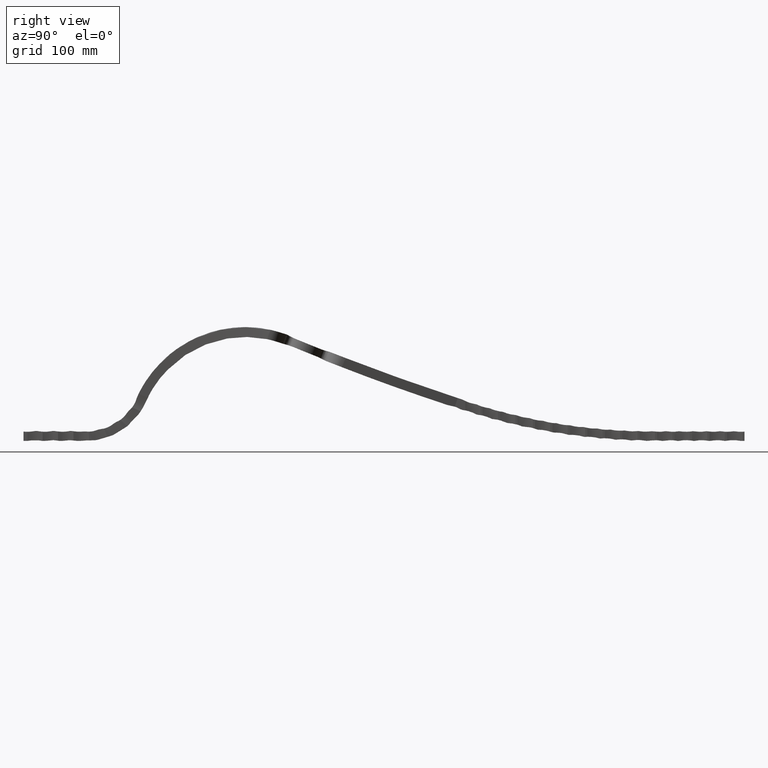
[diagram: clean part render]
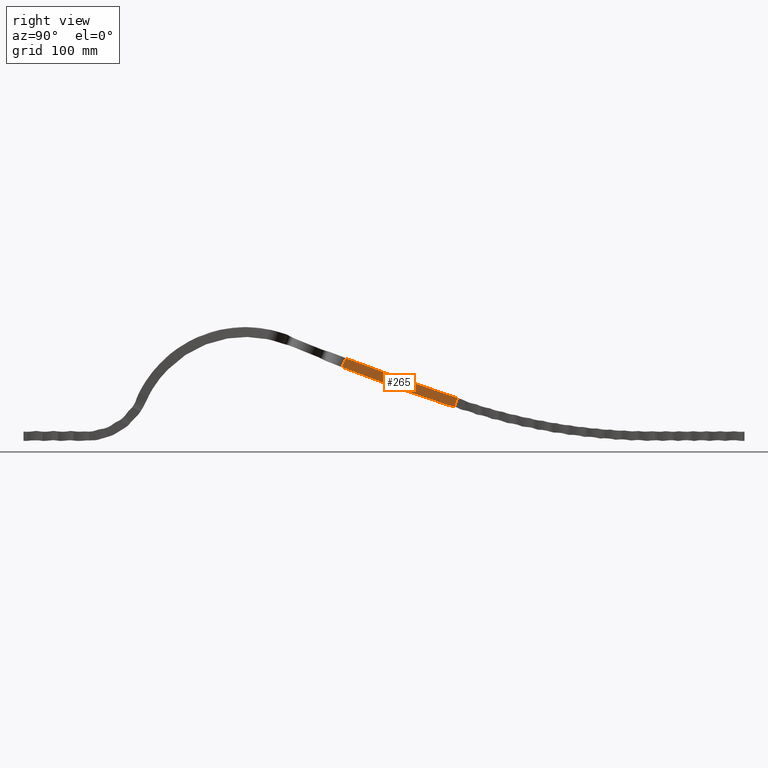
[diagram: same view with one face highlighted and labeled with its STEP entity id]
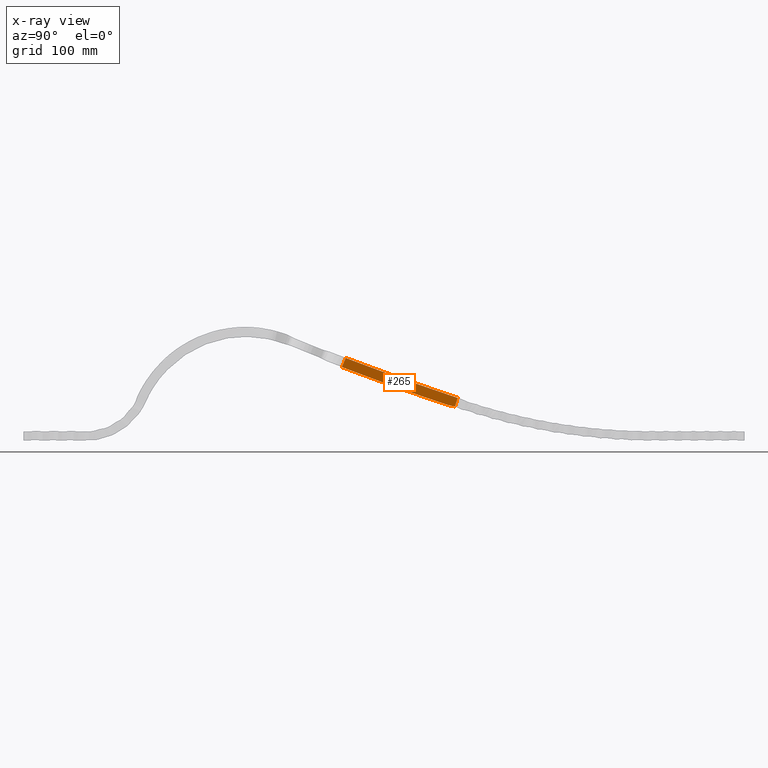
[diagram: x-ray of the same camera — body ghosted, the highlighted face saturated]
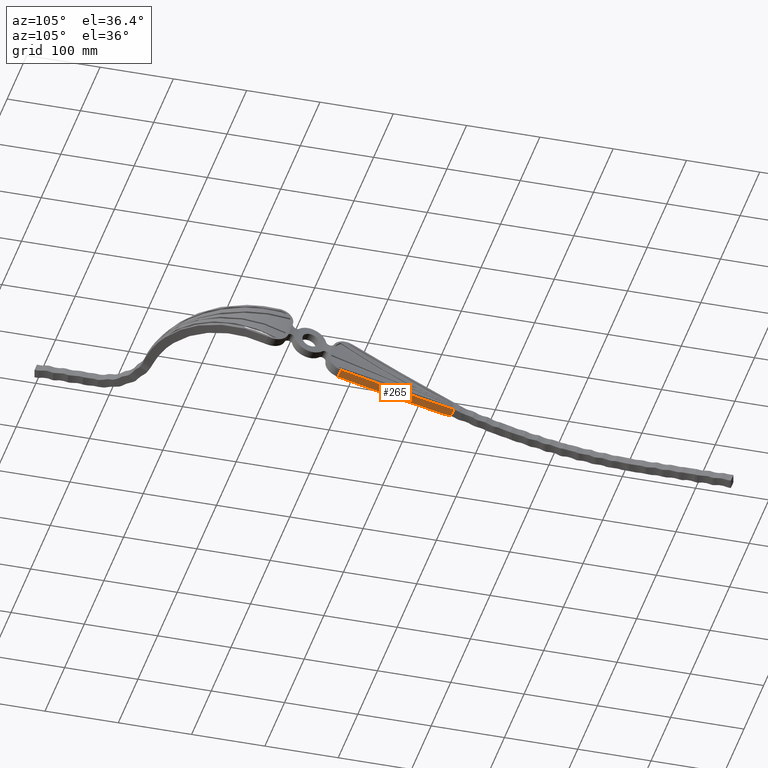
[diagram: same view with one face highlighted and labeled with its STEP entity id]
A machine part, right view. The second image highlights one B-rep face of the part: STEP entity #265.
The next image is the same camera in x-ray: the body ghosted, the highlighted face saturated — about 0% of this face is hidden behind the body in this view.
A second angle (auxiliary view) of the same face is appended — the face is thin or edge-on in the first view.
In plain terms, the highlighted face is a freeform B-spline surface patch.
Its self-contained STEP definition (entity closure, byte-faithful):
#216 = CARTESIAN_POINT ( 'NONE',  ( 29.19275164988509985, 422.9157817937839923, 98.66544944919053250 ) ) ;
#265 = ADVANCED_FACE ( 'NONE', ( #23280 ), #21489, .T. ) ;
#1019 = ORIENTED_EDGE ( 'NONE', *, *, #10485, .T. ) ;
#1152 = CARTESIAN_POINT ( 'NONE',  ( 6.500000000000000000, 572.0520284755799594, 50.02053948777285086 ) ) ;
#2369 = CARTESIAN_POINT ( 'NONE',  ( 29.20761037884696165, 419.5331693987598101, 90.68387095057711633 ) ) ;
#4262 = CARTESIAN_POINT ( 'NONE',  ( 29.20430110138917712, 420.2896617246669280, 92.46890608974246106 ) ) ;
#4675 = VERTEX_POINT ( 'NONE', #20795 ) ;
#4830 = CARTESIAN_POINT ( 'NONE',  ( 15.16679412383265912, 510.9478214107848544, 56.79192178479907938 ) ) ;
#5481 = CARTESIAN_POINT ( 'NONE',  ( 29.18526641244792330, 424.6071219733291855, 102.6562241916893328 ) ) ;
#5510 = CARTESIAN_POINT ( 'NONE',  ( 29.19647560351549487, 422.0701230531716988, 96.67005723318359856 ) ) ;
#5714 = CARTESIAN_POINT ( 'NONE',  ( 26.47680916645860449, 442.0541231792932422, 95.94182492879913582 ) ) ;
#5906 = B_SPLINE_CURVE_WITH_KNOTS ( 'NONE', 3,
 ( #21468, #16049, #21787, #10690 ),
 .UNSPECIFIED., .F., .F.,
 ( 4, 4 ),
 ( 0.000000000000000000, 0.009805790500191270340 ),
 .UNSPECIFIED. ) ;
#6315 = CARTESIAN_POINT ( 'NONE',  ( 7.891718761283565975, 558.8471700023733320, 40.73713867572664782 ) ) ;
#6703 = EDGE_CURVE ( 'NONE', #17995, #8729, #5906, .T. ) ;
#7291 = CARTESIAN_POINT ( 'NONE',  ( 29.19726065602981180, 421.8918171869200933, 96.24933156917545318 ) ) ;
#7504 = EDGE_CURVE ( 'NONE', #14610, #17995, #17430, .T. ) ;
#8217 = CARTESIAN_POINT ( 'NONE',  ( 7.891718761283565975, 558.8471700023733320, 40.73713867572664782 ) ) ;
#8314 = CARTESIAN_POINT ( 'NONE',  ( 10.31337739668422948, 542.9026990181400834, 46.08076605695493555 ) ) ;
#8729 = VERTEX_POINT ( 'NONE', #8217 ) ;
#9978 = CARTESIAN_POINT ( 'NONE',  ( 26.49170503800791465, 437.1329658685171466, 83.90811201439022682 ) ) ;
#10023 = CARTESIAN_POINT ( 'NONE',  ( 6.500000000000000000, 568.0099615575538792, 37.66490534661281941 ) ) ;
#10130 = CARTESIAN_POINT ( 'NONE',  ( 15.63067998978774931, 507.9176416998598711, 57.88500858344931288 ) ) ;
#10215 = CARTESIAN_POINT ( 'NONE',  ( 22.73579003989179625, 461.5058798898992336, 74.62727768176603149 ) ) ;
#10485 = EDGE_CURVE ( 'NONE', #4675, #12322, #12441, .T. ) ;
#10655 = CARTESIAN_POINT ( 'NONE',  ( 6.500000000000000000, 572.0520284755799594, 50.02053948777285086 ) ) ;
#10690 = CARTESIAN_POINT ( 'NONE',  ( 7.891718761283565975, 558.8471700023733320, 40.73713867572664782 ) ) ;
#10958 = VECTOR ( 'NONE', #21513, 1000.000000000000000 ) ;
#11810 = CARTESIAN_POINT ( 'NONE',  ( 11.24118810654761269, 536.7962948915039760, 48.13500635904080838 ) ) ;
#11848 = CARTESIAN_POINT ( 'NONE',  ( 32.49999999999999289, 398.2055284812243485, 98.91902307029602071 ) ) ;
#12010 = CARTESIAN_POINT ( 'NONE',  ( 28.68662260430192745, 427.8133979966592619, 101.4045157714006820 ) ) ;
#12322 = VERTEX_POINT ( 'NONE', #15992 ) ;
#12441 = B_SPLINE_CURVE_WITH_KNOTS ( 'NONE', 3,
 ( #21589, #19943, #216, #5510, #18040, #7291, #19861, #22283, #4262, #2369 ),
 .UNSPECIFIED., .F., .F.,
 ( 4, 3, 3, 4 ),
 ( 0.000000000000000000, 0.006501590883926084037, 0.007187016507778119095, 0.01300318176904966677 ),
 .UNSPECIFIED. ) ;
#12442 = ORIENTED_EDGE ( 'NONE', *, *, #12663, .F. ) ;
#12663 = EDGE_CURVE ( 'NONE', #8729, #12322, #12707, .T. ) ;
#12707 = B_SPLINE_CURVE_WITH_KNOTS ( 'NONE', 3,
 ( #6315, #11810, #10130, #10215, #9978, #19021 ),
 .UNSPECIFIED., .F., .F.,
 ( 4, 1, 1, 4 ),
 ( 0.05352686660307591493, 0.4399986132098092084, 0.5600013864694951549, 0.8733713709599096875 ),
 .UNSPECIFIED. ) ;
#13396 = EDGE_CURVE ( 'NONE', #4675, #14610, #21421, .T. ) ;
#13649 = CARTESIAN_POINT ( 'NONE',  ( 23.83320587916666611, 459.0598997075395005, 89.32560412657606719 ) ) ;
#14017 = ORIENTED_EDGE ( 'NONE', *, *, #13396, .F. ) ;
#14610 = VERTEX_POINT ( 'NONE', #22070 ) ;
#15188 = CARTESIAN_POINT ( 'NONE',  ( 6.499999999999999112, 568.3146721574266849, 38.59633294722156194 ) ) ;
#15281 = ORIENTED_EDGE ( 'NONE', *, *, #6703, .F. ) ;
#15545 = CARTESIAN_POINT ( 'NONE',  ( 28.68662260430193101, 422.9034639585898958, 89.36848907497022765 ) ) ;
#15992 = CARTESIAN_POINT ( 'NONE',  ( 29.20761037884696165, 419.5331693987598101, 90.68387095057711633 ) ) ;
#16049 = CARTESIAN_POINT ( 'NONE',  ( 6.968240740402582567, 565.2283301128156836, 39.61443859177474280 ) ) ;
#17430 = LINE ( 'NONE', #10655, #10958 ) ;
#17995 = VERTEX_POINT ( 'NONE', #15188 ) ;
#18010 = CARTESIAN_POINT ( 'NONE',  ( 6.500000000000000000, 572.0520284755803004, 50.02053948777248138 ) ) ;
#18040 = CARTESIAN_POINT ( 'NONE',  ( 29.19686819869503225, 421.9809700781211177, 96.45969441907614339 ) ) ;
#18095 = CARTESIAN_POINT ( 'NONE',  ( 15.16679412383265912, 515.3319277245560670, 69.03088718252891454 ) ) ;
#19021 = CARTESIAN_POINT ( 'NONE',  ( 29.20761037884696165, 419.5331693987598101, 90.68387095057711633 ) ) ;
#19143 = CARTESIAN_POINT ( 'NONE',  ( 10.31337739668422593, 547.0952627960052723, 58.38506611278428693 ) ) ;
#19220 = CARTESIAN_POINT ( 'NONE',  ( 32.49999999999998579, 403.2627133826998147, 110.8950357987582294 ) ) ;
#19861 = CARTESIAN_POINT ( 'NONE',  ( 29.19765297566305051, 421.8026643794923416, 96.03896868351449712 ) ) ;
#19917 = CARTESIAN_POINT ( 'NONE',  ( 10.31337739668422593, 547.0952627960052723, 58.38506611278428693 ) ) ;
#19943 = CARTESIAN_POINT ( 'NONE',  ( 29.18901529389741611, 423.7614480786631930, 100.6608384448038152 ) ) ;
#19996 = CARTESIAN_POINT ( 'NONE',  ( 22.72834235815534143, 466.2339081396985421, 86.73827120797486145 ) ) ;
#20080 = ORIENTED_EDGE ( 'NONE', *, *, #7504, .F. ) ;
#20795 = CARTESIAN_POINT ( 'NONE',  ( 29.18526641244792330, 424.6071219733291855, 102.6562241916893328 ) ) ;
#21421 = B_SPLINE_CURVE_WITH_KNOTS ( 'NONE', 3,
 ( #5481, #5714, #19996, #18095, #19917, #18010 ),
 .UNSPECIFIED., .F., .F.,
 ( 4, 1, 1, 4 ),
 ( 0.1274880022093689003, 0.4399986135305048451, 0.5600013867901907361, 1.000000000000000000 ),
 .UNSPECIFIED. ) ;
#21468 = CARTESIAN_POINT ( 'NONE',  ( 6.499999999999999112, 568.3146721574266849, 38.59633294722156194 ) ) ;
#21489 = B_SPLINE_SURFACE_WITH_KNOTS ( 'NONE', 1, 3, ( 
 ( #10023, #8314, #4830, #22621, #15545, #11848 ),
 ( #1152, #19143, #22789, #13649, #12010, #19220 ) ),
 .UNSPECIFIED., .F., .F., .F.,
 ( 2, 2 ),
 ( 4, 1, 1, 4 ),
 ( 0.000000000000000000, 1.000000000000000000 ),
 ( 0.000000000000000000, 0.4399986132098092084, 0.5600013864694951549, 1.000000000000000000 ),
 .UNSPECIFIED. ) ;
#21513 = DIRECTION ( 'NONE',  ( 0.000000000000000000, -0.3109282244635464543, -0.9504333954738471979 ) ) ;
#21589 = CARTESIAN_POINT ( 'NONE',  ( 29.18526641244792330, 424.6071219733291855, 102.6562241916893328 ) ) ;
#21787 = CARTESIAN_POINT ( 'NONE',  ( 7.432342215512818484, 562.0725504269923931, 40.32815401727186355 ) ) ;
#22070 = CARTESIAN_POINT ( 'NONE',  ( 6.500000000000000000, 572.0520284755803004, 50.02053948777248138 ) ) ;
#22283 = CARTESIAN_POINT ( 'NONE',  ( 29.20098199597203958, 421.0461600361288106, 94.25393867406792481 ) ) ;
#22473 = EDGE_LOOP ( 'NONE', ( #15281, #20080, #14017, #1019, #12442 ) ) ;
#22621 = CARTESIAN_POINT ( 'NONE',  ( 23.83320587916666611, 454.3373769139098499, 77.21319558653176784 ) ) ;
#22789 = CARTESIAN_POINT ( 'NONE',  ( 15.16679412383265380, 515.3319277245560670, 69.03088718252891454 ) ) ;
#23280 = FACE_OUTER_BOUND ( 'NONE', #22473, .T. ) ;